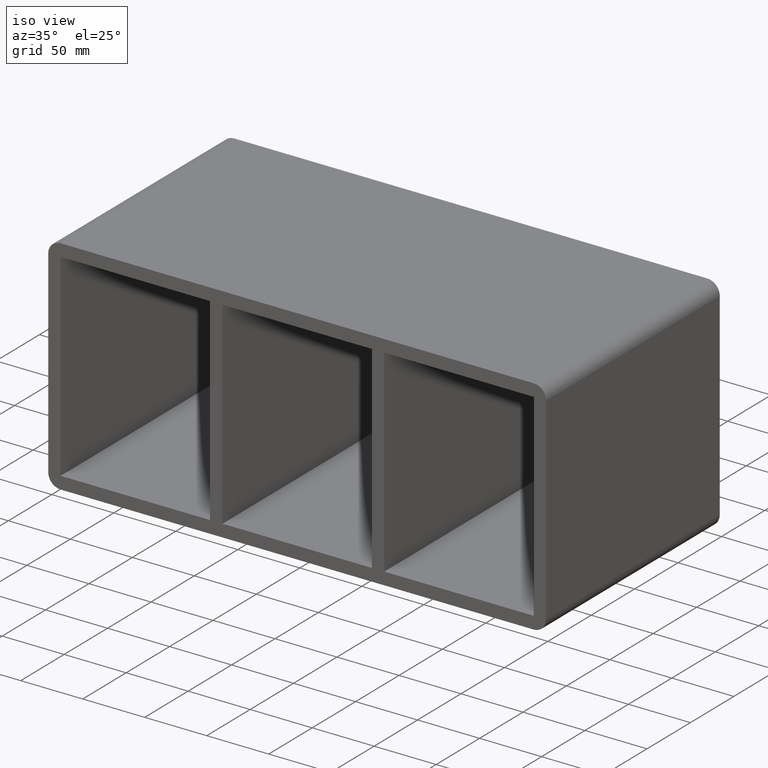
[diagram: clean part render]
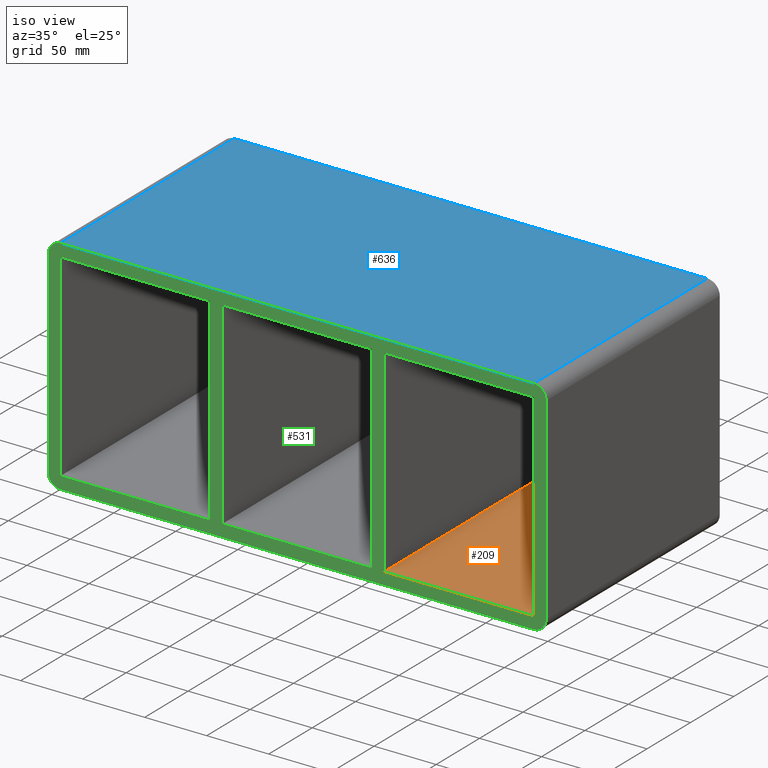
[diagram: same view with three faces highlighted in distinct colors, each labeled with its STEP entity id]
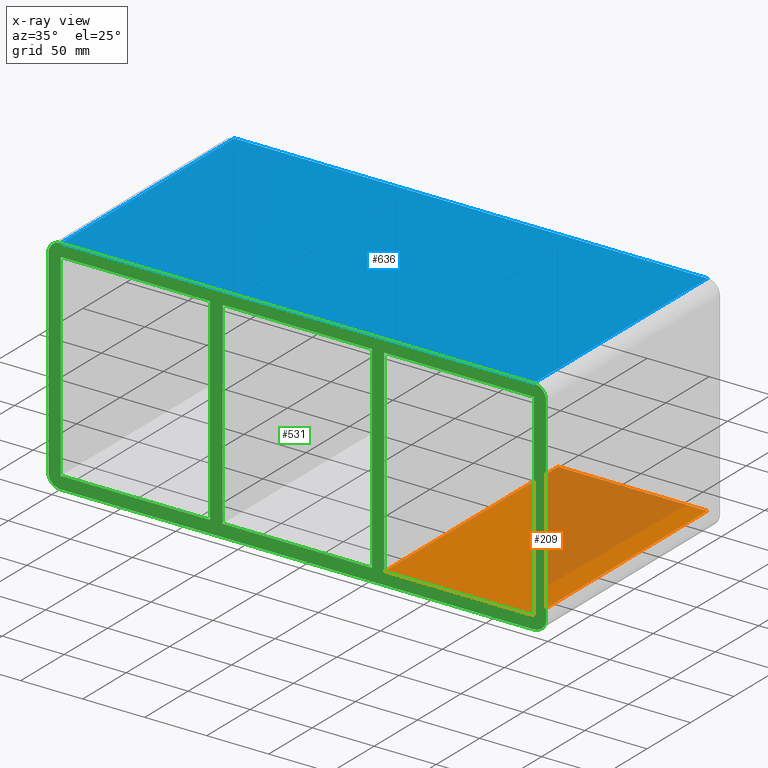
[diagram: x-ray of the same camera — body ghosted, the three highlighted faces saturated]
A machine part, iso view with three faces highlighted in distinct colors.
The next image is the same camera in x-ray (body ghosted, the three faces saturated) — at least one of them is partly hidden behind the body in this view.
Their STEP definitions:

[orange] entity #209 — the highlighted planar face has unit normal (0, 0, -1).
#115=CARTESIAN_POINT('',(70.249999999985448,-3.0,-79.74999999997155));
#116=VERTEX_POINT('',#115);
#123=CARTESIAN_POINT('',(70.249999999985448,197.0,-79.74999999997155));
#124=VERTEX_POINT('',#123);
#125=CARTESIAN_POINT('',(70.249999999985448,196.99999999999997,-79.750000000000014));
#126=DIRECTION('',(0.0,-1.0,0.0));
#127=VECTOR('',#126,199.99999999999997);
#128=LINE('',#125,#127);
#129=EDGE_CURVE('',#124,#116,#128,.T.);
#179=CARTESIAN_POINT('',(190.75000000000006,0.0,-79.750000000000014));
#180=DIRECTION('',(0.0,0.0,-1.0));
#181=DIRECTION('',(-1.0,0.0,0.0));
#182=AXIS2_PLACEMENT_3D('',#179,#180,#181);
#183=PLANE('',#182);
#184=ORIENTED_EDGE('',*,*,#129,.T.);
#185=CARTESIAN_POINT('',(190.75000000000006,-3.0,-79.750000000000014));
#186=VERTEX_POINT('',#185);
#187=CARTESIAN_POINT('',(190.75000000000006,-3.0,-79.750000000000014));
#188=DIRECTION('',(-1.0,0.0,0.0));
#189=VECTOR('',#188,120.50000000001461);
#190=LINE('',#187,#189);
#191=EDGE_CURVE('',#186,#116,#190,.T.);
#192=ORIENTED_EDGE('',*,*,#191,.F.);
#193=CARTESIAN_POINT('',(190.75000000000006,197.0,-79.750000000000014));
#194=VERTEX_POINT('',#193);
#195=CARTESIAN_POINT('',(190.75000000000006,197.0,-79.750000000000014));
#196=DIRECTION('',(0.0,-1.0,0.0));
#197=VECTOR('',#196,200.0);
#198=LINE('',#195,#197);
#199=EDGE_CURVE('',#194,#186,#198,.T.);
#200=ORIENTED_EDGE('',*,*,#199,.F.);
#201=CARTESIAN_POINT('',(70.249999999985448,197.0,-79.750000000000014));
#202=DIRECTION('',(1.0,0.0,0.0));
#203=VECTOR('',#202,120.50000000001461);
#204=LINE('',#201,#203);
#205=EDGE_CURVE('',#124,#194,#204,.T.);
#206=ORIENTED_EDGE('',*,*,#205,.F.);
#207=EDGE_LOOP('',(#184,#192,#200,#206));
#208=FACE_OUTER_BOUND('',#207,.T.);
#209=ADVANCED_FACE('',(#208),#183,.F.);

[blue] entity #636 — the highlighted planar face has unit normal (0, 0, 1).
#469=CARTESIAN_POINT('',(190.75,-3.0,89.750000000000028));
#470=VERTEX_POINT('',#469);
#478=CARTESIAN_POINT('',(-190.75000000000003,-3.0,89.750000000000028));
#479=VERTEX_POINT('',#478);
#480=CARTESIAN_POINT('',(190.75,-3.0,89.750000000000028));
#481=DIRECTION('',(-1.0,0.0,0.0));
#482=VECTOR('',#481,381.5);
#483=LINE('',#480,#482);
#484=EDGE_CURVE('',#470,#479,#483,.T.);
#595=CARTESIAN_POINT('',(190.75,197.0,89.750000000000028));
#596=VERTEX_POINT('',#595);
#604=CARTESIAN_POINT('',(190.75000000000003,197.0,89.750000000000028));
#605=DIRECTION('',(0.0,-1.0,0.0));
#606=VECTOR('',#605,200.0);
#607=LINE('',#604,#606);
#608=EDGE_CURVE('',#596,#470,#607,.T.);
#613=CARTESIAN_POINT('',(-200.75000000000003,0.0,89.750000000000028));
#614=DIRECTION('',(0.0,0.0,1.0));
#615=DIRECTION('',(1.0,0.0,0.0));
#616=AXIS2_PLACEMENT_3D('',#613,#614,#615);
#617=PLANE('',#616);
#618=ORIENTED_EDGE('',*,*,#608,.F.);
#619=CARTESIAN_POINT('',(-190.75000000000003,197.0,89.750000000000028));
#620=VERTEX_POINT('',#619);
#621=CARTESIAN_POINT('',(-190.75000000000003,197.0,89.750000000000028));
#622=DIRECTION('',(1.0,0.0,0.0));
#623=VECTOR('',#622,381.5);
#624=LINE('',#621,#623);
#625=EDGE_CURVE('',#620,#596,#624,.T.);
#626=ORIENTED_EDGE('',*,*,#625,.F.);
#627=CARTESIAN_POINT('',(-190.75000000000003,-3.0,89.750000000000028));
#628=DIRECTION('',(0.0,1.0,0.0));
#629=VECTOR('',#628,200.0);
#630=LINE('',#627,#629);
#631=EDGE_CURVE('',#479,#620,#630,.T.);
#632=ORIENTED_EDGE('',*,*,#631,.F.);
#633=ORIENTED_EDGE('',*,*,#484,.F.);
#634=EDGE_LOOP('',(#618,#626,#632,#633));
#635=FACE_OUTER_BOUND('',#634,.T.);
#636=ADVANCED_FACE('',(#635),#617,.T.);

[green] entity #531 — the highlighted planar face has unit normal (0, 1, 0).
#73=CARTESIAN_POINT('',(60.249999999998778,-3.0,-79.750000000000014));
#74=VERTEX_POINT('',#73);
#75=CARTESIAN_POINT('',(60.249999999998764,-3.0,79.750000000000028));
#76=VERTEX_POINT('',#75);
#77=CARTESIAN_POINT('',(60.249999999998778,-3.0,-79.750000000000014));
#78=DIRECTION('',(0.0,0.0,1.0));
#79=VECTOR('',#78,159.50000000000006);
#80=LINE('',#77,#79);
#81=EDGE_CURVE('',#74,#76,#80,.T.);
#113=CARTESIAN_POINT('',(70.249999999985448,-3.0,79.750000000000028));
#114=VERTEX_POINT('',#113);
#115=CARTESIAN_POINT('',(70.249999999985448,-3.0,-79.74999999997155));
#116=VERTEX_POINT('',#115);
#117=CARTESIAN_POINT('',(70.249999999985448,-3.0,79.750000000000028));
#118=DIRECTION('',(0.0,0.0,-1.0));
#119=VECTOR('',#118,159.49999999997158);
#120=LINE('',#117,#119);
#121=EDGE_CURVE('',#114,#116,#120,.T.);
#162=CARTESIAN_POINT('',(-60.250000000014552,-3.0,-79.74999999997155));
#163=VERTEX_POINT('',#162);
#170=CARTESIAN_POINT('',(60.249999999998778,-3.0,-79.750000000000014));
#171=DIRECTION('',(-1.0,0.0,0.0));
#172=VECTOR('',#171,120.50000000001333);
#173=LINE('',#170,#172);
#174=EDGE_CURVE('',#74,#163,#173,.T.);
#185=CARTESIAN_POINT('',(190.75000000000006,-3.0,-79.750000000000014));
#186=VERTEX_POINT('',#185);
#187=CARTESIAN_POINT('',(190.75000000000006,-3.0,-79.750000000000014));
#188=DIRECTION('',(-1.0,0.0,0.0));
#189=VECTOR('',#188,120.50000000001461);
#190=LINE('',#187,#189);
#191=EDGE_CURVE('',#186,#116,#190,.T.);
#224=CARTESIAN_POINT('',(190.75000000000006,-3.0,79.750000000000028));
#225=VERTEX_POINT('',#224);
#232=CARTESIAN_POINT('',(70.249999999985462,-3.0,79.750000000000028));
#233=DIRECTION('',(1.0,0.0,0.0));
#234=VECTOR('',#233,120.50000000001459);
#235=LINE('',#232,#234);
#236=EDGE_CURVE('',#114,#225,#235,.T.);
#247=CARTESIAN_POINT('',(-60.250000000014552,-3.0,79.750000000000028));
#248=VERTEX_POINT('',#247);
#249=CARTESIAN_POINT('',(-60.250000000014552,-3.0,79.750000000000028));
#250=DIRECTION('',(1.0,0.0,0.0));
#251=VECTOR('',#250,120.50000000001332);
#252=LINE('',#249,#251);
#253=EDGE_CURVE('',#248,#76,#252,.T.);
#277=CARTESIAN_POINT('',(-70.250000000001222,-3.0,-79.750000000000014));
#278=VERTEX_POINT('',#277);
#279=CARTESIAN_POINT('',(-70.250000000001251,-3.0,79.750000000000028));
#280=VERTEX_POINT('',#279);
#281=CARTESIAN_POINT('',(-70.250000000001222,-3.0,-79.750000000000014));
#282=DIRECTION('',(0.0,0.0,1.0));
#283=VECTOR('',#282,159.50000000000006);
#284=LINE('',#281,#283);
#285=EDGE_CURVE('',#278,#280,#284,.T.);
#317=CARTESIAN_POINT('',(-60.250000000014552,-3.0,79.750000000000028));
#318=DIRECTION('',(0.0,0.0,-1.0));
#319=VECTOR('',#318,159.49999999997158);
#320=LINE('',#317,#319);
#321=EDGE_CURVE('',#248,#163,#320,.T.);
#348=CARTESIAN_POINT('',(-190.75,-3.0,-79.750000000000014));
#349=VERTEX_POINT('',#348);
#356=CARTESIAN_POINT('',(-70.250000000001251,-3.0,-79.750000000000014));
#357=DIRECTION('',(-1.0,0.0,0.0));
#358=VECTOR('',#357,120.49999999999878);
#359=LINE('',#356,#358);
#360=EDGE_CURVE('',#278,#349,#359,.T.);
#371=CARTESIAN_POINT('',(-190.75,-3.0,79.750000000000028));
#372=VERTEX_POINT('',#371);
#373=CARTESIAN_POINT('',(-190.75,-3.0,79.750000000000028));
#374=DIRECTION('',(1.0,0.0,0.0));
#375=VECTOR('',#374,120.49999999999875);
#376=LINE('',#373,#375);
#377=EDGE_CURVE('',#372,#280,#376,.T.);
#412=CARTESIAN_POINT('',(-190.75000000000003,-3.0,-89.75));
#413=VERTEX_POINT('',#412);
#420=CARTESIAN_POINT('',(-200.75000000000003,-3.0,-79.75));
#421=VERTEX_POINT('',#420);
#422=CARTESIAN_POINT('',(-190.75000000000003,-3.0,-79.75));
#423=DIRECTION('',(0.0,1.0,0.0));
#424=DIRECTION('',(-0.707106781186547,0.0,-0.707106781186547));
#425=AXIS2_PLACEMENT_3D('',#422,#423,#424);
#426=CIRCLE('',#425,9.999999999999998);
#427=EDGE_CURVE('',#413,#421,#426,.T.);
#438=CARTESIAN_POINT('',(-1.714444E-014,-3.0,1.467558E-014));
#439=DIRECTION('',(0.0,1.0,0.0));
#440=DIRECTION('',(0.0,0.0,1.0));
#441=AXIS2_PLACEMENT_3D('',#438,#439,#440);
#442=PLANE('',#441);
#443=ORIENTED_EDGE('',*,*,#427,.F.);
#444=CARTESIAN_POINT('',(190.75,-3.0,-89.75));
#445=VERTEX_POINT('',#444);
#446=CARTESIAN_POINT('',(-190.75000000000003,-3.0,-89.75));
#447=DIRECTION('',(1.0,0.0,0.0));
#448=VECTOR('',#447,381.5);
#449=LINE('',#446,#448);
#450=EDGE_CURVE('',#413,#445,#449,.T.);
#451=ORIENTED_EDGE('',*,*,#450,.T.);
#452=CARTESIAN_POINT('',(200.75,-3.0,-79.75));
#453=VERTEX_POINT('',#452);
#454=CARTESIAN_POINT('',(190.75,-3.0,-79.75));
#455=DIRECTION('',(0.0,1.0,0.0));
#456=DIRECTION('',(0.707106781186547,0.0,-0.707106781186547));
#457=AXIS2_PLACEMENT_3D('',#454,#455,#456);
#458=CIRCLE('',#457,9.999999999999998);
#459=EDGE_CURVE('',#453,#445,#458,.T.);
#460=ORIENTED_EDGE('',*,*,#459,.F.);
#461=CARTESIAN_POINT('',(200.75,-3.0,79.750000000000028));
#462=VERTEX_POINT('',#461);
#463=CARTESIAN_POINT('',(200.75,-3.0,-79.75));
#464=DIRECTION('',(0.0,0.0,1.0));
#465=VECTOR('',#464,159.50000000000003);
#466=LINE('',#463,#465);
#467=EDGE_CURVE('',#453,#462,#466,.T.);
#468=ORIENTED_EDGE('',*,*,#467,.T.);
#469=CARTESIAN_POINT('',(190.75,-3.0,89.750000000000028));
#470=VERTEX_POINT('',#469);
#471=CARTESIAN_POINT('',(190.75000000000003,-3.0,79.750000000000028));
#472=DIRECTION('',(0.0,1.0,0.0));
#473=DIRECTION('',(0.707106781186547,0.0,0.707106781186547));
#474=AXIS2_PLACEMENT_3D('',#471,#472,#473);
#475=CIRCLE('',#474,9.999999999999998);
#476=EDGE_CURVE('',#470,#462,#475,.T.);
#477=ORIENTED_EDGE('',*,*,#476,.F.);
#478=CARTESIAN_POINT('',(-190.75000000000003,-3.0,89.750000000000028));
#479=VERTEX_POINT('',#478);
#480=CARTESIAN_POINT('',(190.75,-3.0,89.750000000000028));
#481=DIRECTION('',(-1.0,0.0,0.0));
#482=VECTOR('',#481,381.5);
#483=LINE('',#480,#482);
#484=EDGE_CURVE('',#470,#479,#483,.T.);
#485=ORIENTED_EDGE('',*,*,#484,.T.);
#486=CARTESIAN_POINT('',(-200.75000000000003,-3.0,79.750000000000028));
#487=VERTEX_POINT('',#486);
#488=CARTESIAN_POINT('',(-190.75000000000003,-3.0,79.750000000000028));
#489=DIRECTION('',(0.0,1.0,0.0));
#490=DIRECTION('',(-0.707106781186547,0.0,0.707106781186547));
#491=AXIS2_PLACEMENT_3D('',#488,#489,#490);
#492=CIRCLE('',#491,9.999999999999998);
#493=EDGE_CURVE('',#487,#479,#492,.T.);
#494=ORIENTED_EDGE('',*,*,#493,.F.);
#495=CARTESIAN_POINT('',(-200.75000000000003,-3.0,79.750000000000028));
#496=DIRECTION('',(0.0,0.0,-1.0));
#497=VECTOR('',#496,159.50000000000003);
#498=LINE('',#495,#497);
#499=EDGE_CURVE('',#487,#421,#498,.T.);
#500=ORIENTED_EDGE('',*,*,#499,.T.);
#501=EDGE_LOOP('',(#443,#451,#460,#468,#477,#485,#494,#500));
#502=FACE_OUTER_BOUND('',#501,.T.);
#503=ORIENTED_EDGE('',*,*,#174,.T.);
#504=ORIENTED_EDGE('',*,*,#321,.F.);
#505=ORIENTED_EDGE('',*,*,#253,.T.);
#506=ORIENTED_EDGE('',*,*,#81,.F.);
#507=EDGE_LOOP('',(#503,#504,#505,#506));
#508=FACE_BOUND('',#507,.T.);
#509=ORIENTED_EDGE('',*,*,#360,.T.);
#510=CARTESIAN_POINT('',(-190.75000000000003,-3.0,-79.750000000000014));
#511=DIRECTION('',(0.0,0.0,1.0));
#512=VECTOR('',#511,159.50000000000006);
#513=LINE('',#510,#512);
#514=EDGE_CURVE('',#349,#372,#513,.T.);
#515=ORIENTED_EDGE('',*,*,#514,.T.);
#516=ORIENTED_EDGE('',*,*,#377,.T.);
#517=ORIENTED_EDGE('',*,*,#285,.F.);
#518=EDGE_LOOP('',(#509,#515,#516,#517));
#519=FACE_BOUND('',#518,.T.);
#520=ORIENTED_EDGE('',*,*,#121,.F.);
#521=ORIENTED_EDGE('',*,*,#236,.T.);
#522=CARTESIAN_POINT('',(190.75000000000006,-3.0,79.750000000000028));
#523=DIRECTION('',(0.0,0.0,-1.0));
#524=VECTOR('',#523,159.50000000000006);
#525=LINE('',#522,#524);
#526=EDGE_CURVE('',#225,#186,#525,.T.);
#527=ORIENTED_EDGE('',*,*,#526,.T.);
#528=ORIENTED_EDGE('',*,*,#191,.T.);
#529=EDGE_LOOP('',(#520,#521,#527,#528));
#530=FACE_BOUND('',#529,.T.);
#531=ADVANCED_FACE('',(#502,#508,#519,#530),#442,.F.);